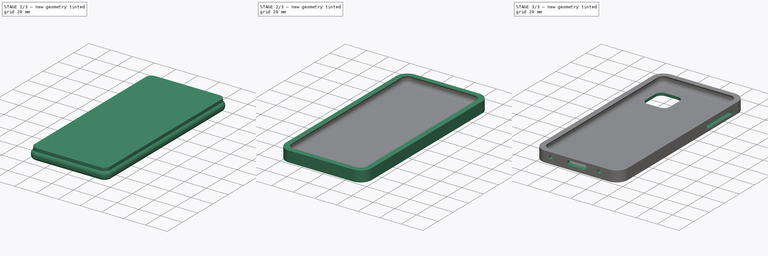
[diagram: build sequence overview — one tinted view per stage of 3, left to right]
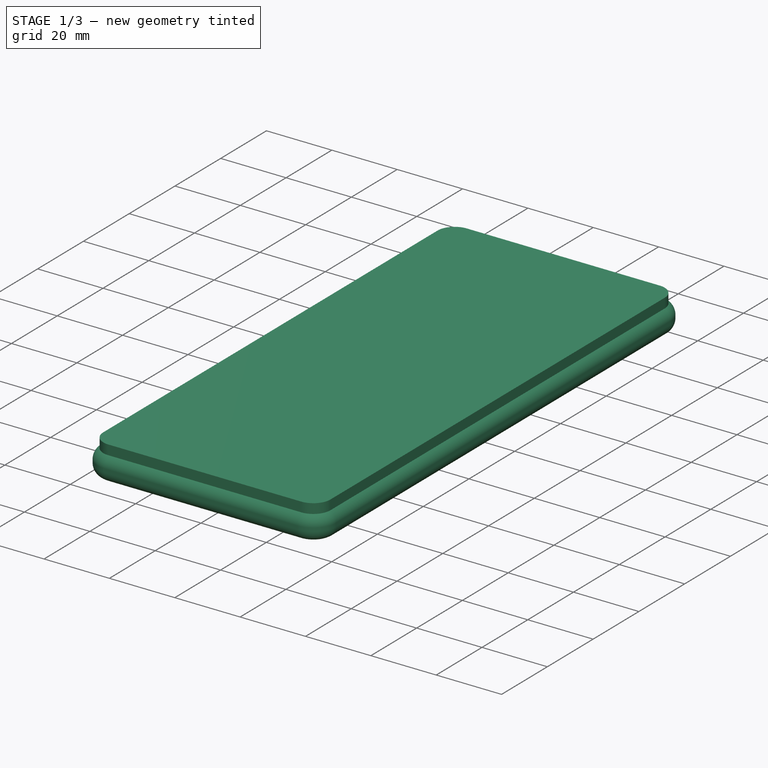
[diagram: stage 1 of 3 — iso view after this stage's code; geometry added in this stage tinted green]
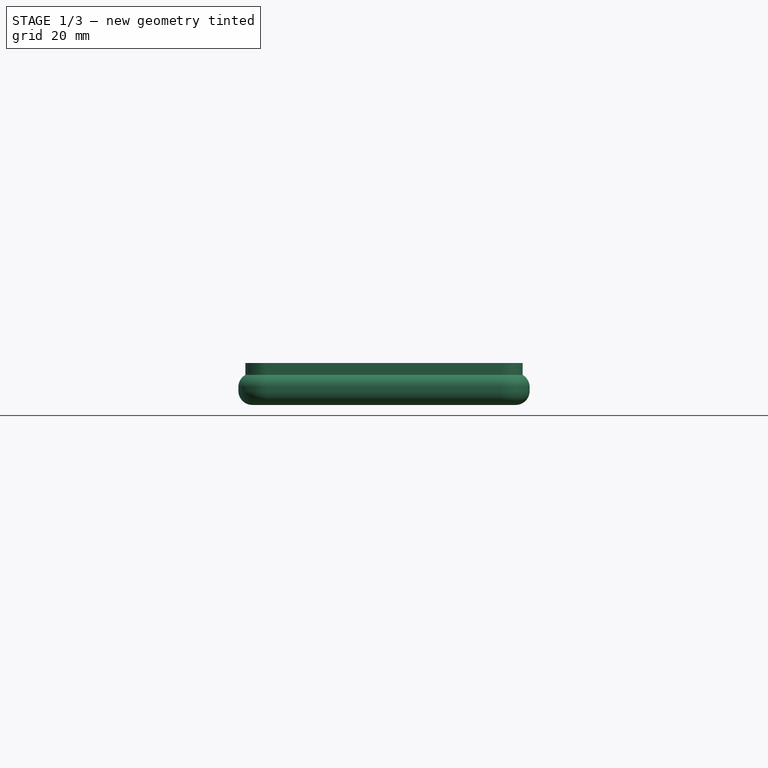
[diagram: stage 1 of 3 — front view after this stage's code; geometry added in this stage tinted green]
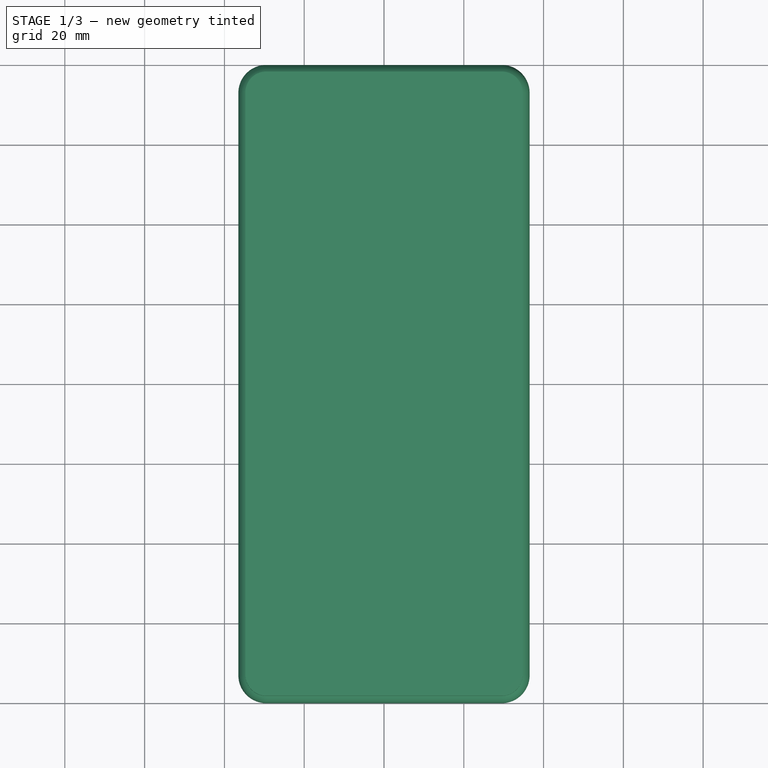
[diagram: stage 1 of 3 — top view after this stage's code; geometry added in this stage tinted green]
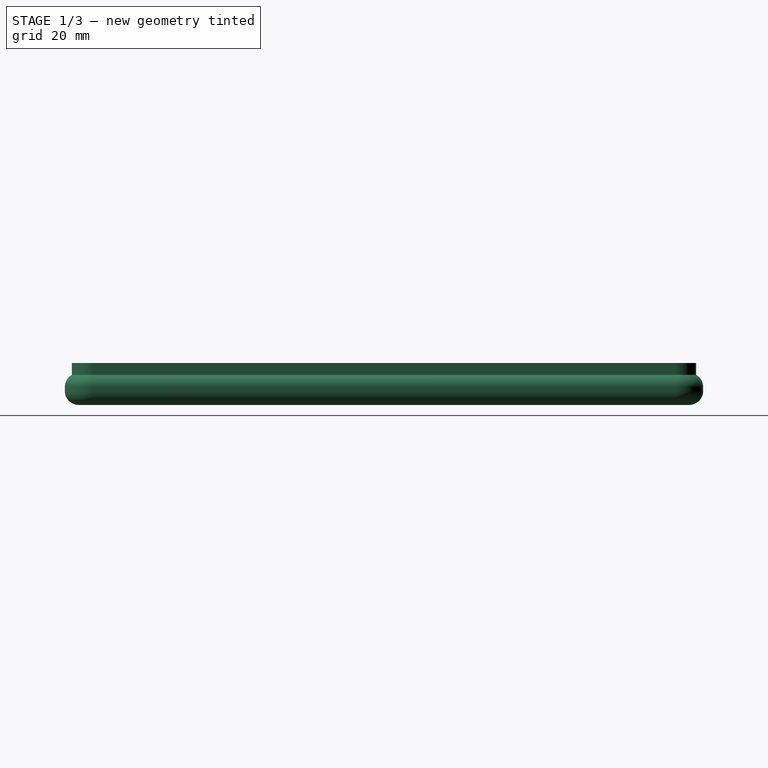
[diagram: stage 1 of 3 — right view after this stage's code; geometry added in this stage tinted green]
FCSTD DOCUMENT  (FreeCAD 0.21RUnknown)
Label: part42b-phone_case-partDesignWB
License: All rights reserved
LicenseURL: http://en.wikipedia.org/wiki/All_rights_reserved
objects: Sketcher::SketchObject×5, PartDesign::Pad×3, PartDesign::Pocket×3, PartDesign::Body×2, PartDesign::Fillet×1, PartDesign::SubShapeBinder×1, PartDesign::Boolean×1
note: 23 computed .brp shape members not serialized (recipe doc carries the construction recipe); baked Part::Feature solids carry a one-line shape summary decoded from their .brp

FEATURE [Sketcher::SketchObject] Sketch
  FullyConstrained = true
  MapMode = 5
  Support = -> [XY_Plane]
  sketch-geometry (10):
    g0: ArcOfCircle CenterX=-29.5 CenterY=73 CenterZ=0 NormalX=0 NormalY=0 NormalZ=1 AngleXU=0 Radius=7 StartAngle=1.5708 EndAngle=3.14159
    g1: LineSegment StartX=-29.5 StartY=80 StartZ=0 EndX=29.5 EndY=80 EndZ=0
    g2: ArcOfCircle CenterX=29.5 CenterY=73 CenterZ=0 NormalX=0 NormalY=0 NormalZ=1 AngleXU=0 Radius=7 StartAngle=1.1131e-12 EndAngle=1.5708
    g3: LineSegment StartX=36.5 StartY=73 StartZ=0 EndX=36.5 EndY=-73 EndZ=0
    g4: ArcOfCircle CenterX=29.5 CenterY=-73 CenterZ=0 NormalX=0 NormalY=0 NormalZ=1 AngleXU=0 Radius=7 StartAngle=4.71239 EndAngle=6.28319
    g5: LineSegment StartX=29.5 StartY=-80 StartZ=0 EndX=-29.5 EndY=-80 EndZ=0
    g6: ArcOfCircle CenterX=-29.5 CenterY=-73 CenterZ=0 NormalX=0 NormalY=0 NormalZ=1 AngleXU=0 Radius=7 StartAngle=3.14159 EndAngle=4.71239
    g7: LineSegment StartX=-36.5 StartY=-73 StartZ=0 EndX=-36.5 EndY=73 EndZ=0
    g8: GeomPoint X=-36.5 Y=80 Z=0
    g9: GeomPoint X=36.5 Y=-80 Z=0
  constraints (23):
    c: Tangent(g0,g1) = 1.5708
    c: Tangent(g1,g2) = 1.5708
    c: Tangent(g2,g3) = 1.5708
    c: Tangent(g3,g4) = 1.5708
    c: Tangent(g4,g5) = 1.5708
    c: Tangent(g5,g6) = 1.5708
    c: Tangent(g6,g7) = 1.5708
    c: Tangent(g7,g0) = 1.5708
    c: Horizontal(g1)
    c: Horizontal(g5)
    c: Vertical(g3)
    c: Vertical(g7)
    c: Equal(g0,g2)
    c: Equal(g2,g4)
    c: Equal(g4,g6)
    c: PointOnObject(g8,g1)
    c: PointOnObject(g8,g7)
    c: PointOnObject(g9,g3)
    c: PointOnObject(g9,g5)
    c: Symmetric(g0,g4,g-1)
    c: DistanceY(g4,g1) = 160
    c: DistanceX(g0,g2) = 73
    c: Radius(g0) = 7
FEATURE [PartDesign::Pad] Pad
  Direction = (0,0,1)
  Length = 8
  Length2 = 10
  Profile = -> Sketch
  ReferenceAxis = -> Sketch [N_Axis]
  Type = 0
FEATURE [PartDesign::Fillet] Fillet
  Base = -> Pad [Face10,Face9]
  BaseFeature = -> Pad
  Radius = 3.5
  SupportTransform = false
  UseAllEdges = false
FEATURE [Sketcher::SketchObject] Sketch001
  ExternalGeometry = -> [Fillet]
  FullyConstrained = true
  MapMode = 5
  Placement = pos=(0,0,8) rot=(0,0,1;0rad)
  Support = -> [Fillet]
  sketch-geometry (10):
    g0: ArcOfCircle CenterX=-29.5 CenterY=73 CenterZ=0 NormalX=0 NormalY=0 NormalZ=1 AngleXU=0 Radius=5.25 StartAngle=1.5708 EndAngle=3.14159
    g1: LineSegment StartX=-29.5 StartY=78.25 StartZ=0 EndX=29.5 EndY=78.25 EndZ=0
    g2: ArcOfCircle CenterX=29.5 CenterY=73 CenterZ=0 NormalX=0 NormalY=0 NormalZ=1 AngleXU=0 Radius=5.25 StartAngle=3e-16 EndAngle=1.5708
    g3: LineSegment StartX=34.75 StartY=73 StartZ=0 EndX=34.75 EndY=-73 EndZ=0
    g4: ArcOfCircle CenterX=29.5 CenterY=-73 CenterZ=0 NormalX=0 NormalY=0 NormalZ=1 AngleXU=0 Radius=5.25 StartAngle=4.71239 EndAngle=6.28319
    g5: LineSegment StartX=29.5 StartY=-78.25 StartZ=0 EndX=-29.5 EndY=-78.25 EndZ=0
    g6: ArcOfCircle CenterX=-29.5 CenterY=-73 CenterZ=0 NormalX=0 NormalY=0 NormalZ=1 AngleXU=0 Radius=5.25 StartAngle=3.14159 EndAngle=4.71239
    g7: LineSegment StartX=-34.75 StartY=-73 StartZ=0 EndX=-34.75 EndY=73 EndZ=0
    g8: GeomPoint X=-34.75 Y=78.25 Z=0
    g9: GeomPoint X=34.75 Y=-78.25 Z=0
  constraints (24):
    c: Tangent(g0,g1) = 1.5708
    c: Tangent(g1,g2) = 1.5708
    c: Tangent(g2,g3) = 1.5708
    c: Tangent(g3,g4) = 1.5708
    c: Tangent(g4,g5) = 1.5708
    c: Tangent(g5,g6) = 1.5708
    c: Tangent(g6,g7) = 1.5708
    c: Tangent(g7,g0) = 1.5708
    c: Horizontal(g1)
    c: Horizontal(g5)
    c: Vertical(g3)
    c: Vertical(g7)
    c: Equal(g0,g2)
    c: Equal(g2,g4)
    c: Equal(g4,g6)
    c: PointOnObject(g8,g1)
    c: PointOnObject(g8,g7)
    c: PointOnObject(g9,g3)
    c: PointOnObject(g9,g5)
    c: PointOnObject(g0,g-4)
    c: PointOnObject(g0,g-3)
    c: DistanceX(g0,g-3) = 1.75
    c: PointOnObject(g3,g-5)
    c: PointOnObject(g4,g-6)
FEATURE [PartDesign::Pad] Pad001
  BaseFeature = -> Fillet
  Direction = (0,0,1)
  Length = 5
  Length2 = 10
  Midplane = true
  Profile = -> Sketch001
  ReferenceAxis = -> Sketch001 [N_Axis]
  Type = 0
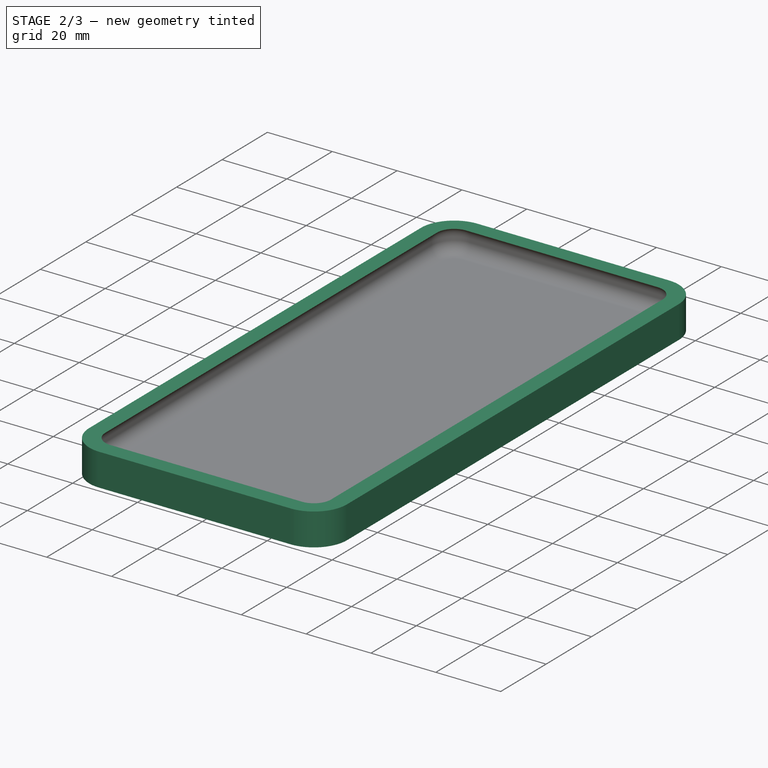
[diagram: stage 2 of 3 — iso view after this stage's code; geometry added in this stage tinted green]
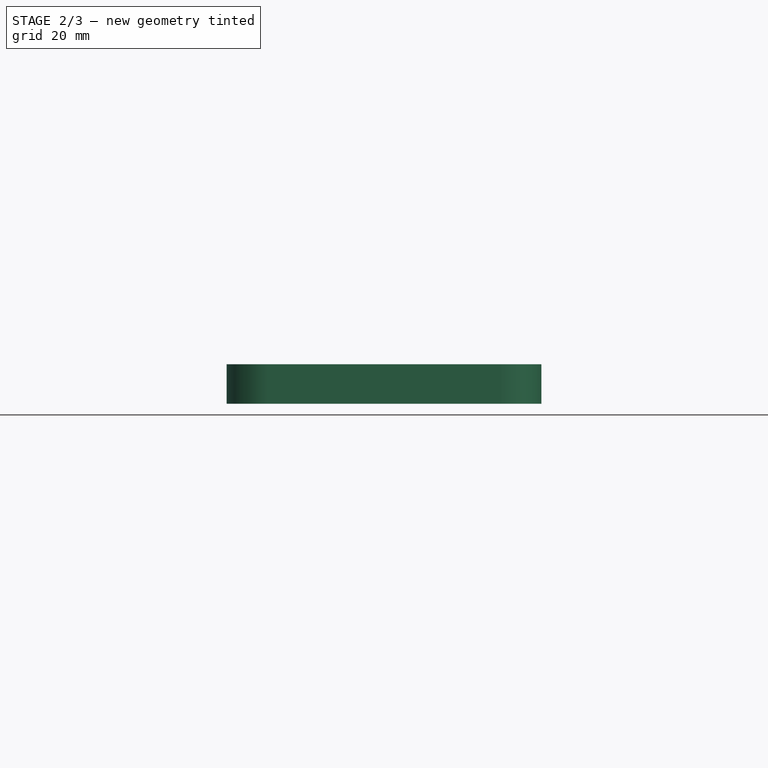
[diagram: stage 2 of 3 — front view after this stage's code; geometry added in this stage tinted green]
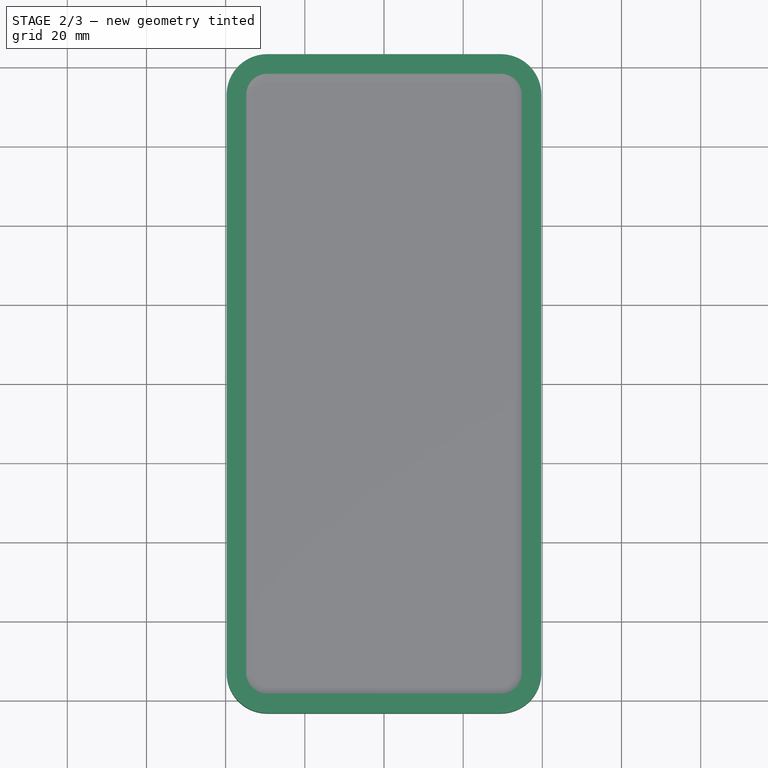
[diagram: stage 2 of 3 — top view after this stage's code; geometry added in this stage tinted green]
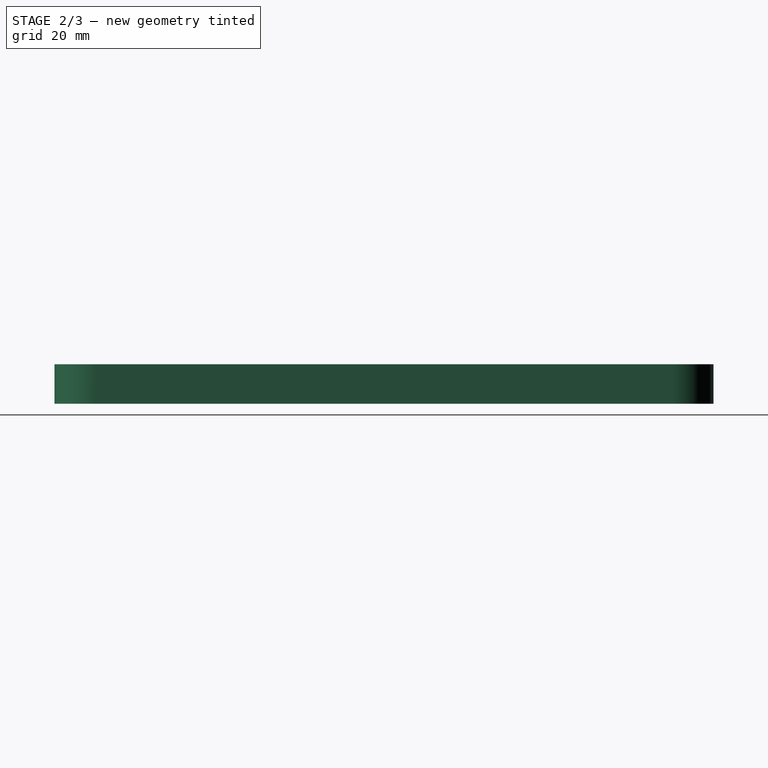
[diagram: stage 2 of 3 — right view after this stage's code; geometry added in this stage tinted green]
FEATURE [PartDesign::Body] Body  label="BlankBody"
  Group = -> [Sketch,Pad,Fillet,Sketch001,Pad001]
  Origin = -> Origin
  Tip = -> Pad001
FEATURE [PartDesign::SubShapeBinder] Binder
  BindCopyOnChange = 0
  BindMode = 0
  ClaimChildren = false
  Context = -> Body001 [Binder.]
  Fuse = false
  MakeFace = true
  Offset = 5
  OffsetFill = false
  OffsetIntersection = false
  OffsetJoinType = 0
  OffsetOpenResult = false
  PartialLoad = false
  Placement = pos=(0,0,-3) rot=(0,0,1;0rad)
  Relative = true
  Support = -> [Body[Pad001.Face23]]
  _Version = 2
FEATURE [PartDesign::Pad] Pad002
  Direction = (0,0,1)
  Length = 10
  Length2 = 10
  Placement = pos=(0,0,-3) rot=(0,0,1;0rad)
  Profile = -> Binder
  Reversed = true
  Type = 0
FEATURE [PartDesign::Boolean] Boolean
  BaseFeature = -> Pad002
  Group = -> [Body]
  Type = 1
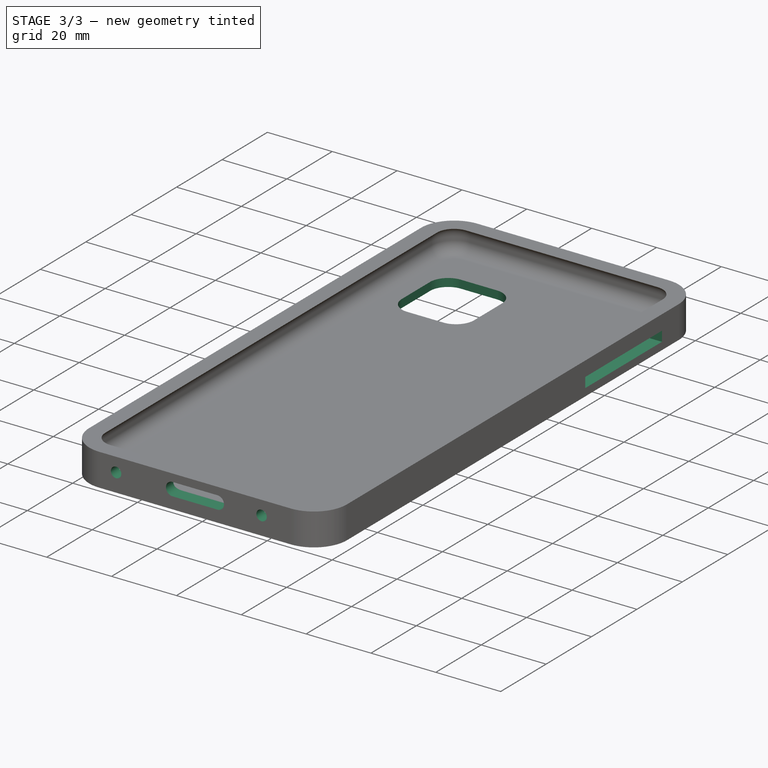
[diagram: stage 3 of 3 — iso view after this stage's code; geometry added in this stage tinted green]
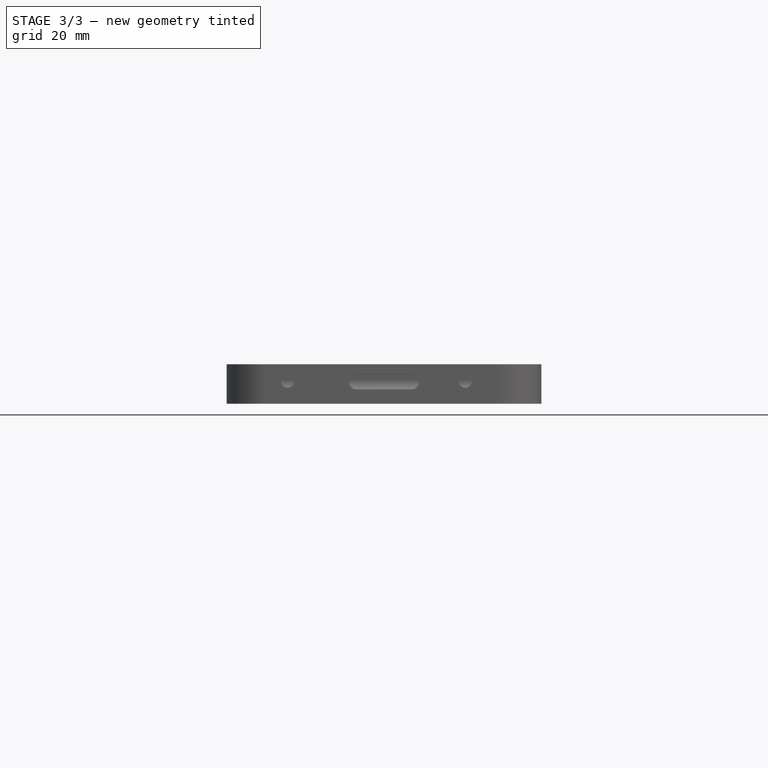
[diagram: stage 3 of 3 — front view after this stage's code; geometry added in this stage tinted green]
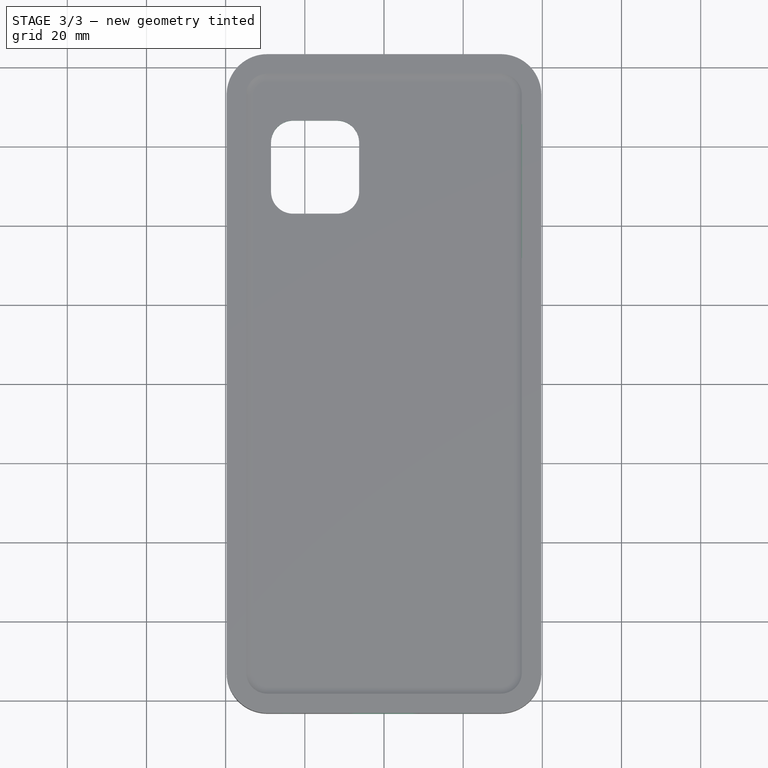
[diagram: stage 3 of 3 — top view after this stage's code; geometry added in this stage tinted green]
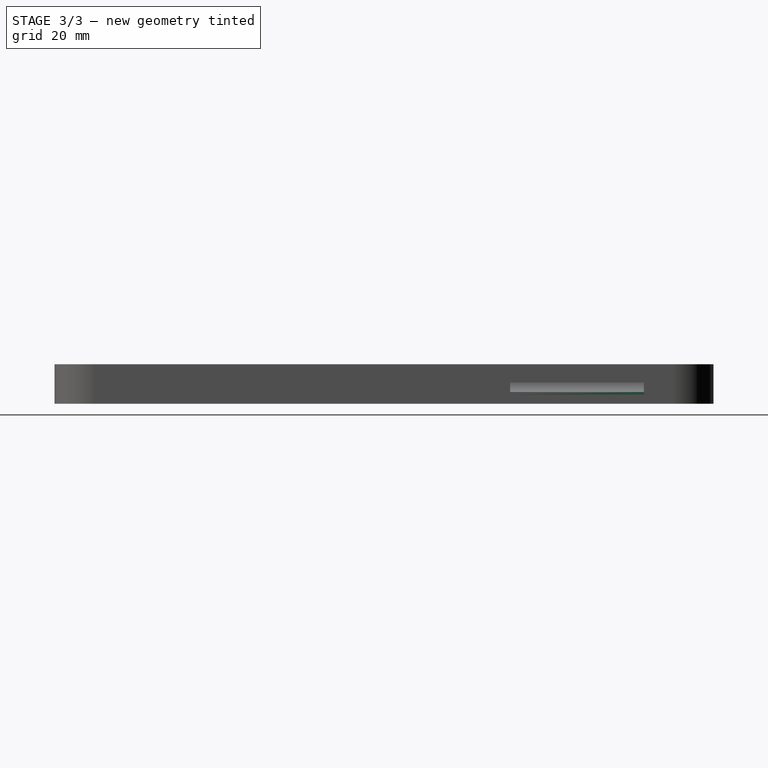
[diagram: stage 3 of 3 — right view after this stage's code; geometry added in this stage tinted green]
FEATURE [Sketcher::SketchObject] Sketch002
  FullyConstrained = false
  MapMode = 5
  Placement = pos=(0,-83.25,0) rot=(1,0,0;1.5708rad)
  Support = -> [Boolean]
  sketch-geometry (6):
    g0: ArcOfCircle CenterX=-6.93936 CenterY=3.14336 CenterZ=0 NormalX=0 NormalY=0 NormalZ=1 AngleXU=0 Radius=2.00466 StartAngle=1.5708 EndAngle=4.71239
    g1: ArcOfCircle CenterX=6.93936 CenterY=3.14336 CenterZ=0 NormalX=0 NormalY=0 NormalZ=1 AngleXU=0 Radius=2.00466 StartAngle=4.71239 EndAngle=7.85398
    g2: LineSegment StartX=-6.93936 StartY=1.13871 StartZ=0 EndX=6.93936 EndY=1.13871 EndZ=0
    g3: LineSegment StartX=6.93936 StartY=5.14802 StartZ=0 EndX=-6.93936 EndY=5.14802 EndZ=0
    g4: Circle CenterX=-24.3282 CenterY=3.14336 CenterZ=0 NormalX=0 NormalY=0 NormalZ=1 AngleXU=0 Radius=1.60789
    g5: Circle CenterX=20.529 CenterY=3.14336 CenterZ=0 NormalX=0 NormalY=0 NormalZ=1 AngleXU=0 Radius=1.60789
  constraints (9):
    c: Tangent(g0,g2) = -1.5708
    c: Tangent(g2,g1) = -1.5708
    c: Tangent(g1,g3) = -1.5708
    c: Tangent(g3,g0) = -1.5708
    c: Equal(g0,g1)
    c: Symmetric(g0,g1,g-2)
    c: Horizontal(g4,g0)
    c: Horizontal(g0,g5)
    c: Equal(g4,g5)
FEATURE [PartDesign::Pocket] Pocket
  BaseFeature = -> Boolean
  Direction = (0,1,-2e-16)
  Length = 5
  Length2 = 5
  Profile = -> Sketch002
  ReferenceAxis = -> Sketch002 [N_Axis]
  Type = 0
FEATURE [Sketcher::SketchObject] Sketch003
  FullyConstrained = false
  MapMode = 5
  Support = -> [Pocket]
  sketch-geometry (10):
    g0: ArcOfCircle CenterX=-22.9714 CenterY=61.0293 CenterZ=0 NormalX=0 NormalY=0 NormalZ=1 AngleXU=0 Radius=5.56386 StartAngle=1.5708 EndAngle=3.14159
    g1: LineSegment StartX=-22.9714 StartY=66.5931 StartZ=0 EndX=-11.8437 EndY=66.5931 EndZ=0
    g2: ArcOfCircle CenterX=-11.8437 CenterY=61.0293 CenterZ=0 NormalX=0 NormalY=0 NormalZ=1 AngleXU=0 Radius=5.56386 StartAngle=1e-16 EndAngle=1.5708
    g3: LineSegment StartX=-6.27984 StartY=61.0293 StartZ=0 EndX=-6.27984 EndY=48.6478 EndZ=0
    g4: ArcOfCircle CenterX=-11.8437 CenterY=48.6478 CenterZ=0 NormalX=0 NormalY=0 NormalZ=1 AngleXU=0 Radius=5.56386 StartAngle=4.71239 EndAngle=6.28319
    g5: LineSegment StartX=-11.8437 StartY=43.0839 StartZ=0 EndX=-22.9714 EndY=43.0839 EndZ=0
    g6: ArcOfCircle CenterX=-22.9714 CenterY=48.6478 CenterZ=0 NormalX=0 NormalY=0 NormalZ=1 AngleXU=0 Radius=5.56386 StartAngle=3.14159 EndAngle=4.71239
    g7: LineSegment StartX=-28.5353 StartY=48.6478 StartZ=0 EndX=-28.5353 EndY=61.0293 EndZ=0
    g8: GeomPoint X=-28.5353 Y=66.5931 Z=0
    g9: GeomPoint X=-6.27984 Y=43.0839 Z=0
  constraints (19):
    c: Tangent(g0,g1) = 1.5708
    c: Tangent(g1,g2) = 1.5708
    c: Tangent(g2,g3) = 1.5708
    c: Tangent(g3,g4) = 1.5708
    c: Tangent(g4,g5) = 1.5708
    c: Tangent(g5,g6) = 1.5708
    c: Tangent(g6,g7) = 1.5708
    c: Tangent(g7,g0) = 1.5708
    c: Horizontal(g1)
    c: Horizontal(g5)
    c: Vertical(g3)
    c: Vertical(g7)
    c: Equal(g0,g2)
    c: Equal(g2,g4)
    c: Equal(g4,g6)
    c: PointOnObject(g8,g1)
    c: PointOnObject(g8,g7)
    c: PointOnObject(g9,g3)
    c: PointOnObject(g9,g5)
FEATURE [PartDesign::Pocket] Pocket001
  BaseFeature = -> Pocket
  Direction = (0,0,-1)
  Length = 5
  Length2 = 5
  Profile = -> Sketch003
  ReferenceAxis = -> Sketch003 [N_Axis]
  Type = 1
FEATURE [Sketcher::SketchObject] Sketch004
  FullyConstrained = false
  MapMode = 5
  Placement = pos=(39.75,0,0) rot=(0.57735,0.57735,0.57735;2.0944rad)
  Support = -> [Pocket001]
  sketch-geometry (4):
    g0: LineSegment StartX=31.8475 StartY=2.91842 StartZ=0 EndX=65.6503 EndY=2.91842 EndZ=0
    g1: LineSegment StartX=65.6503 StartY=2.91842 StartZ=0 EndX=65.6503 EndY=-0.18017 EndZ=0
    g2: LineSegment StartX=65.6503 StartY=-0.18017 StartZ=0 EndX=31.8475 EndY=-0.18017 EndZ=0
    g3: LineSegment StartX=31.8475 StartY=-0.18017 StartZ=0 EndX=31.8475 EndY=2.91842 EndZ=0
  constraints (8):
    c: Coincident(g0,g1)
    c: Coincident(g1,g2)
    c: Coincident(g2,g3)
    c: Coincident(g3,g0)
    c: Horizontal(g0)
    c: Horizontal(g2)
    c: Vertical(g1)
    c: Vertical(g3)
FEATURE [PartDesign::Pocket] Pocket002
  BaseFeature = -> Pocket001
  Direction = (-1,0,0)
  Length = 5
  Length2 = 5
  Profile = -> Sketch004
  ReferenceAxis = -> Sketch004 [N_Axis]
  Type = 0
FEATURE [PartDesign::Body] Body001  label="CaseBody"
  Group = -> [Binder,Pad002,Boolean,Sketch002,Pocket,Sketch003,Pocket001,Sketch004,Pocket002]
  Origin = -> Origin001
  Tip = -> Pocket002
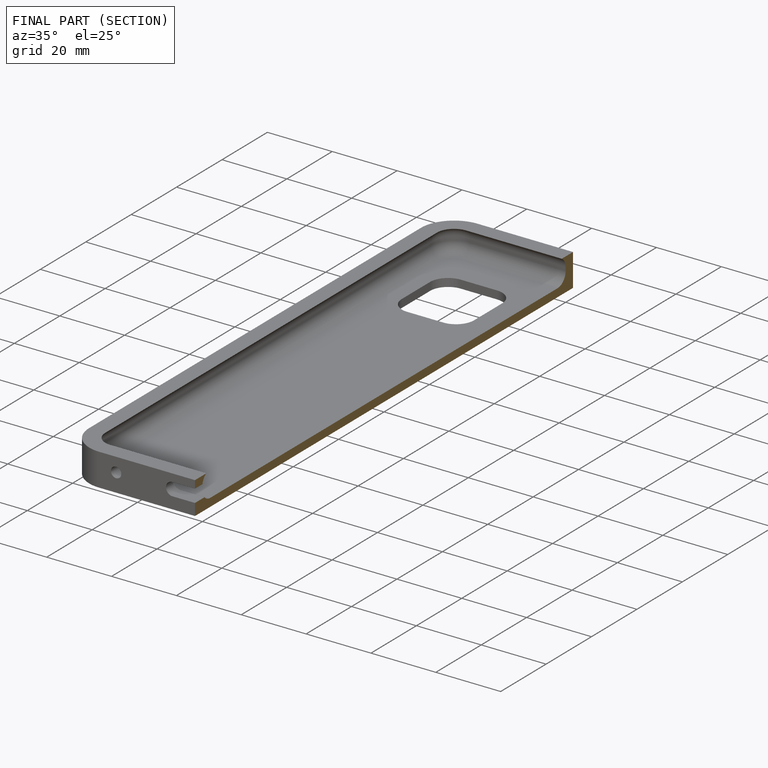
[diagram: finished part — half-section view (interior)]
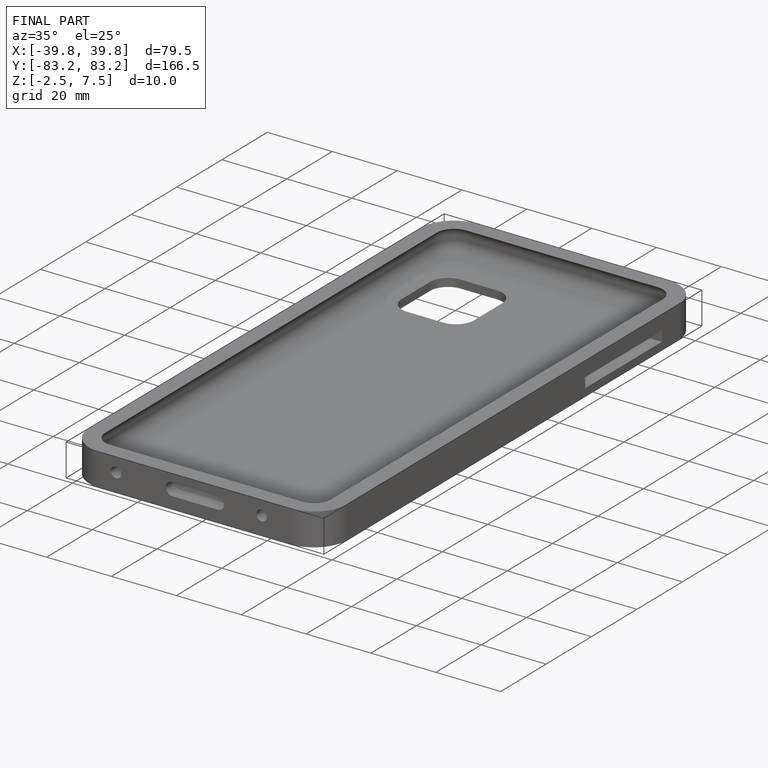
[diagram: finished part — iso view with bounding-box wireframe]
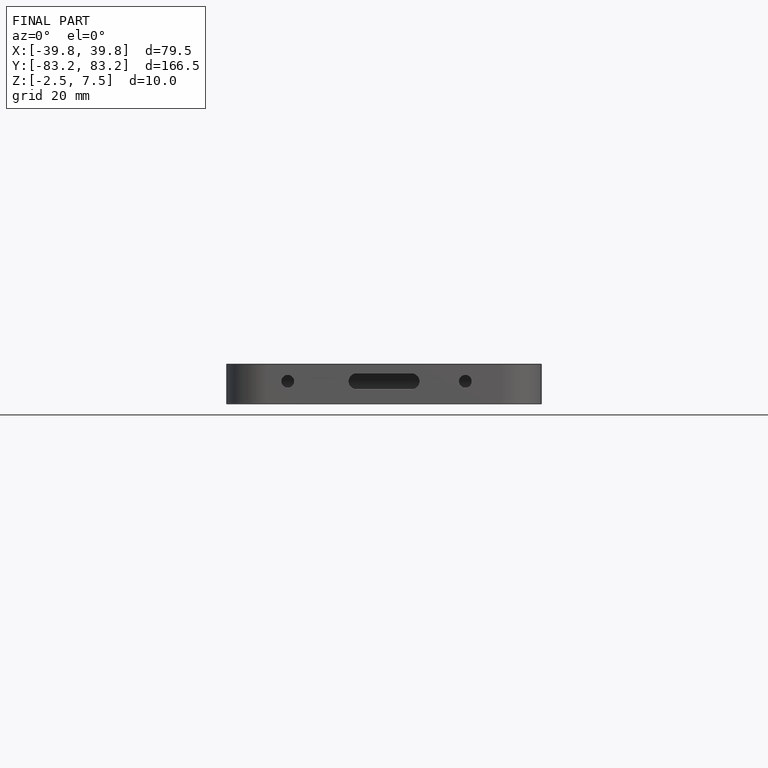
[diagram: finished part — front view with bounding-box wireframe]
